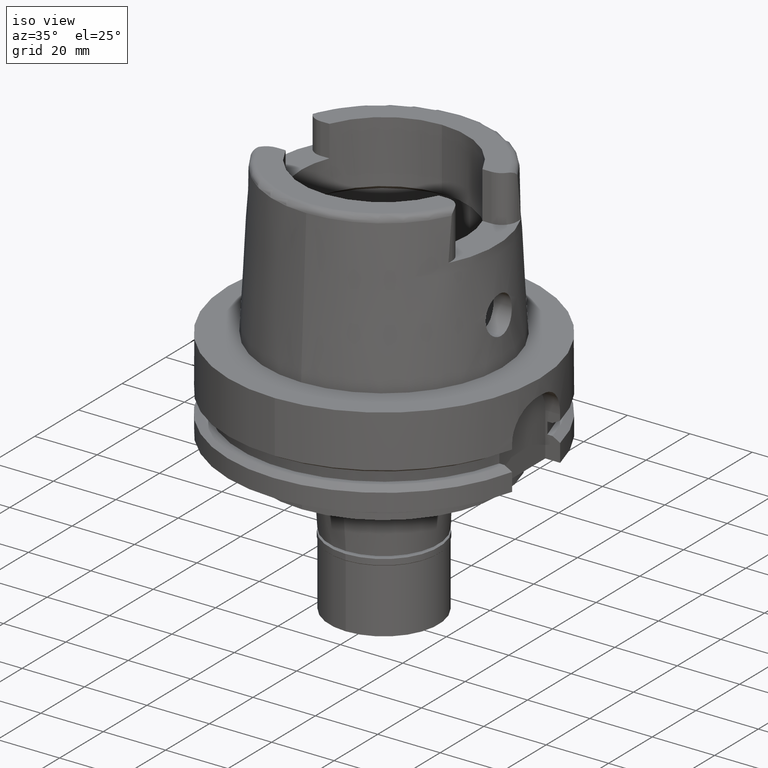
[diagram: clean part render]
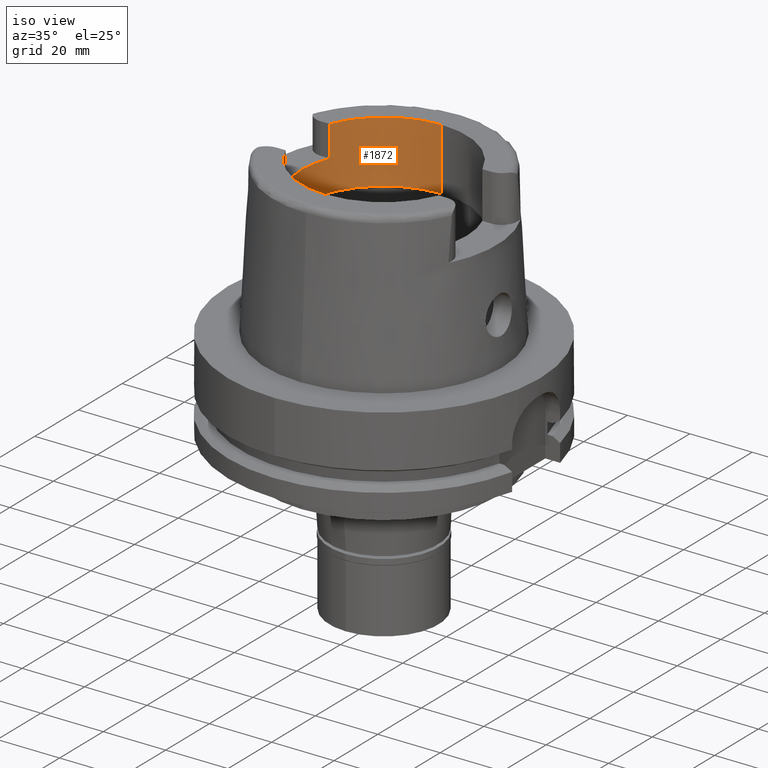
[diagram: same view with one face highlighted and labeled with its STEP entity id]
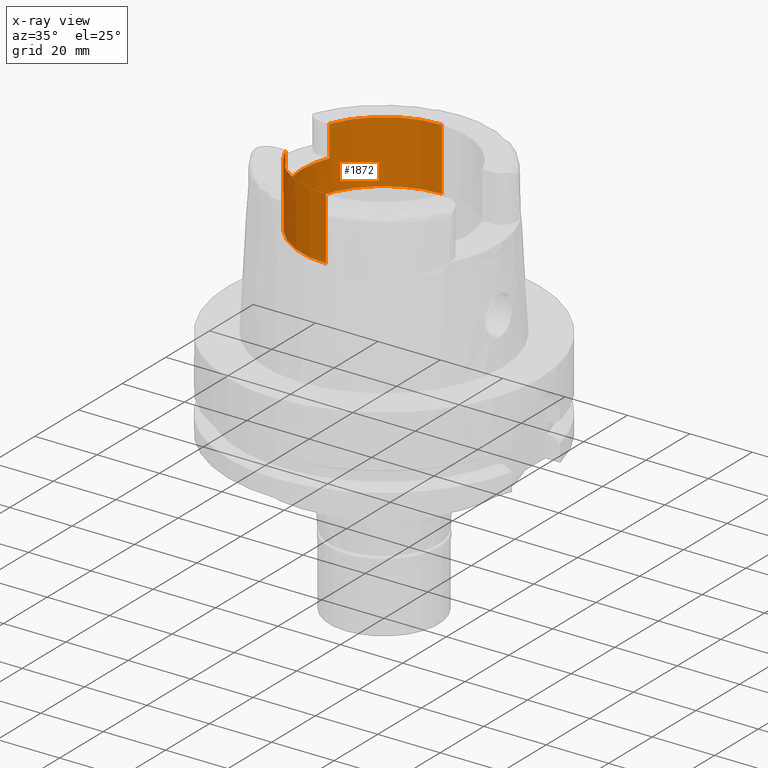
[diagram: x-ray of the same camera — body ghosted, the highlighted face saturated]
A machine part, iso view. The second image highlights one B-rep face of the part: STEP entity #1872.
The next image is the same camera in x-ray: the body ghosted, the highlighted face saturated — about 1% of this face is hidden behind the body in this view.
In plain terms, the highlighted cylindrical surface (partial cylindrical patch) has radius 26.5 mm, axis along (0, 0, 1).
Its self-contained STEP definition (entity closure, byte-faithful):
#65 = DIRECTION ( 'NONE',  ( -0.9259134021805098813, 0.3777358490566039562, 0.0000000000000000000 ) ) ;
#417 = VERTEX_POINT ( 'NONE', #1930 ) ;
#517 = DIRECTION ( 'NONE',  ( 0.0000000000000000000, 0.0000000000000000000, -1.000000000000000000 ) ) ;
#731 = LINE ( 'NONE', #4165, #4313 ) ;
#828 = EDGE_CURVE ( 'NONE', #417, #3260, #3880, .T. ) ;
#854 = EDGE_CURVE ( 'NONE', #2466, #3260, #2298, .T. ) ;
#882 = CIRCLE ( 'NONE', #4035, 26.50000000000000711 ) ;
#935 = ORIENTED_EDGE ( 'NONE', *, *, #2756, .F. ) ;
#939 = DIRECTION ( 'NONE',  ( 0.0000000000000000000, 0.0000000000000000000, 1.000000000000000000 ) ) ;
#996 = EDGE_CURVE ( 'NONE', #2466, #2669, #3754, .T. ) ;
#999 = CARTESIAN_POINT ( 'NONE',  ( 0.0000000000000000000, 0.0000000000000000000, 30.00337567297000163 ) ) ;
#1124 = EDGE_CURVE ( 'NONE', #2912, #5286, #1137, .T. ) ;
#1133 = DIRECTION ( 'NONE',  ( -0.9259134021805098813, -0.3777358490566039562, 0.0000000000000000000 ) ) ;
#1137 = CIRCLE ( 'NONE', #4856, 26.50000000000000000 ) ;
#1248 = VECTOR ( 'NONE', #5086, 1000.000000000000000 ) ;
#1296 = CARTESIAN_POINT ( 'NONE',  ( 0.0000000000000000000, 0.0000000000000000000, 50.00000000000000000 ) ) ;
#1368 = ORIENTED_EDGE ( 'NONE', *, *, #996, .F. ) ;
#1378 = DIRECTION ( 'NONE',  ( 0.0000000000000000000, 1.000000000000000000, 0.0000000000000000000 ) ) ;
#1547 = VERTEX_POINT ( 'NONE', #3992 ) ;
#1617 = CARTESIAN_POINT ( 'NONE',  ( -24.53670515777999839, 10.00999999999999979, 40.00000000000000000 ) ) ;
#1767 = CARTESIAN_POINT ( 'NONE',  ( 0.0000000000000000000, 0.0000000000000000000, 40.00000000000000000 ) ) ;
#1872 = ADVANCED_FACE ( 'NONE', ( #5334 ), #2267, .F. ) ;
#1930 = CARTESIAN_POINT ( 'NONE',  ( -24.53670515777999839, -10.00999999999999979, 50.00000000000000000 ) ) ;
#1979 = EDGE_CURVE ( 'NONE', #417, #5058, #882, .T. ) ;
#2004 = DIRECTION ( 'NONE',  ( 0.0000000000000000000, 0.0000000000000000000, 1.000000000000000000 ) ) ;
#2128 = CIRCLE ( 'NONE', #5291, 26.50000000000000000 ) ;
#2149 = DIRECTION ( 'NONE',  ( 0.0000000000000000000, 1.000000000000000000, 0.0000000000000000000 ) ) ;
#2152 = LINE ( 'NONE', #2958, #1248 ) ;
#2267 = CYLINDRICAL_SURFACE ( 'NONE', #2935, 26.50000000000000000 ) ;
#2275 = ORIENTED_EDGE ( 'NONE', *, *, #5449, .T. ) ;
#2277 = DIRECTION ( 'NONE',  ( 0.0000000000000000000, 0.0000000000000000000, -1.000000000000000000 ) ) ;
#2298 = CIRCLE ( 'NONE', #4480, 26.50000000000000711 ) ;
#2301 = ORIENTED_EDGE ( 'NONE', *, *, #1124, .T. ) ;
#2354 = ORIENTED_EDGE ( 'NONE', *, *, #854, .T. ) ;
#2466 = VERTEX_POINT ( 'NONE', #3644 ) ;
#2540 = EDGE_CURVE ( 'NONE', #5286, #1547, #2152, .T. ) ;
#2669 = VERTEX_POINT ( 'NONE', #5118 ) ;
#2756 = EDGE_CURVE ( 'NONE', #2912, #5058, #731, .T. ) ;
#2912 = VERTEX_POINT ( 'NONE', #4222 ) ;
#2935 = AXIS2_PLACEMENT_3D ( 'NONE', #4468, #3553, #1378 ) ;
#2958 = CARTESIAN_POINT ( 'NONE',  ( 0.0000000000000000000, 26.50000000000000000, 30.00337567297000163 ) ) ;
#3014 = EDGE_LOOP ( 'NONE', ( #3742, #3236, #935, #2301, #4169, #2275, #1368, #2354 ) ) ;
#3087 = CARTESIAN_POINT ( 'NONE',  ( 0.0000000000000000000, -26.50000000000000000, 50.00000000000000000 ) ) ;
#3236 = ORIENTED_EDGE ( 'NONE', *, *, #1979, .T. ) ;
#3260 = VERTEX_POINT ( 'NONE', #5311 ) ;
#3553 = DIRECTION ( 'NONE',  ( 0.0000000000000000000, 0.0000000000000000000, 1.000000000000000000 ) ) ;
#3626 = CARTESIAN_POINT ( 'NONE',  ( 0.0000000000000000000, 26.50000000000000000, 30.00337567297000163 ) ) ;
#3644 = CARTESIAN_POINT ( 'NONE',  ( -24.53670515777999839, 10.00999999999999979, 40.00000000000000000 ) ) ;
#3742 = ORIENTED_EDGE ( 'NONE', *, *, #828, .F. ) ;
#3753 = DIRECTION ( 'NONE',  ( 0.0000000000000000000, 4.406108640804999471E-14, 1.000000000000000000 ) ) ;
#3754 = LINE ( 'NONE', #1617, #4018 ) ;
#3880 = LINE ( 'NONE', #4820, #5483 ) ;
#3992 = CARTESIAN_POINT ( 'NONE',  ( 0.0000000000000000000, 26.50000000000000000, 50.00000000000000000 ) ) ;
#4018 = VECTOR ( 'NONE', #2004, 1000.000000000000000 ) ;
#4035 = AXIS2_PLACEMENT_3D ( 'NONE', #4068, #4588, #1133 ) ;
#4068 = CARTESIAN_POINT ( 'NONE',  ( 0.0000000000000000000, 0.0000000000000000000, 50.00000000000000000 ) ) ;
#4165 = CARTESIAN_POINT ( 'NONE',  ( 0.0000000000000000000, -26.50000000000000000, 30.00337567297000163 ) ) ;
#4169 = ORIENTED_EDGE ( 'NONE', *, *, #2540, .T. ) ;
#4222 = CARTESIAN_POINT ( 'NONE',  ( 0.0000000000000000000, -26.50000000000000000, 30.00337567297000163 ) ) ;
#4313 = VECTOR ( 'NONE', #3753, 1000.000000000000000 ) ;
#4468 = CARTESIAN_POINT ( 'NONE',  ( 0.0000000000000000000, 0.0000000000000000000, -79.46499999999998920 ) ) ;
#4480 = AXIS2_PLACEMENT_3D ( 'NONE', #1767, #939, #65 ) ;
#4588 = DIRECTION ( 'NONE',  ( 0.0000000000000000000, 0.0000000000000000000, 1.000000000000000000 ) ) ;
#4690 = DIRECTION ( 'NONE',  ( 0.0000000000000000000, 0.0000000000000000000, 1.000000000000000000 ) ) ;
#4820 = CARTESIAN_POINT ( 'NONE',  ( -24.53670515777999839, -10.00999999999999979, 50.00000000000000000 ) ) ;
#4856 = AXIS2_PLACEMENT_3D ( 'NONE', #999, #2277, #4999 ) ;
#4999 = DIRECTION ( 'NONE',  ( 0.0000000000000000000, -1.000000000000000000, 0.0000000000000000000 ) ) ;
#5058 = VERTEX_POINT ( 'NONE', #3087 ) ;
#5086 = DIRECTION ( 'NONE',  ( 0.0000000000000000000, -4.406108640804999471E-14, 1.000000000000000000 ) ) ;
#5118 = CARTESIAN_POINT ( 'NONE',  ( -24.53670515777999839, 10.00999999999999979, 50.00000000000000000 ) ) ;
#5286 = VERTEX_POINT ( 'NONE', #3626 ) ;
#5291 = AXIS2_PLACEMENT_3D ( 'NONE', #1296, #4690, #2149 ) ;
#5311 = CARTESIAN_POINT ( 'NONE',  ( -24.53670515777999839, -10.00999999999999979, 40.00000000000000000 ) ) ;
#5334 = FACE_OUTER_BOUND ( 'NONE', #3014, .T. ) ;
#5449 = EDGE_CURVE ( 'NONE', #1547, #2669, #2128, .T. ) ;
#5483 = VECTOR ( 'NONE', #517, 1000.000000000000000 ) ;